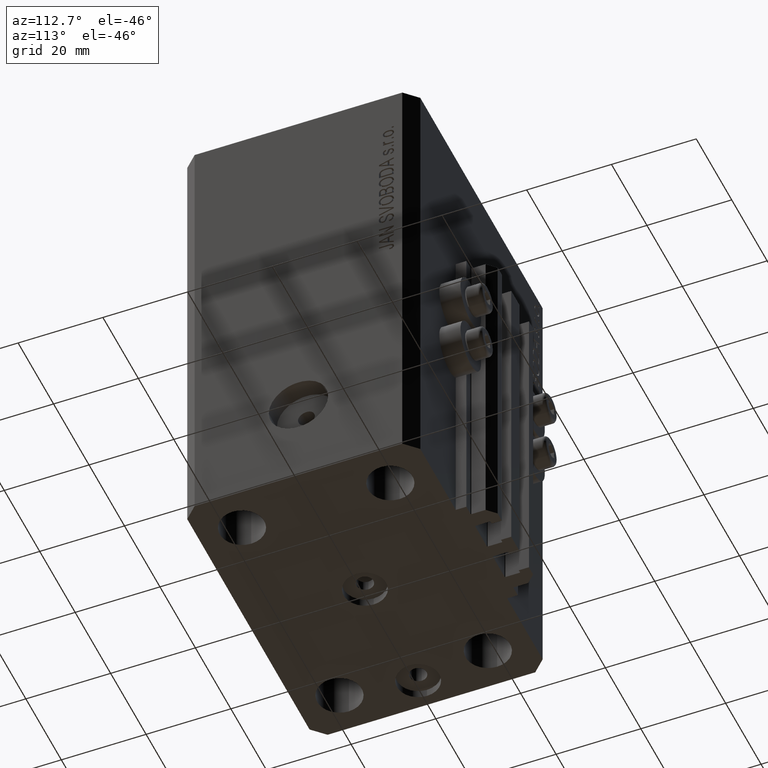
[diagram: clean part render]
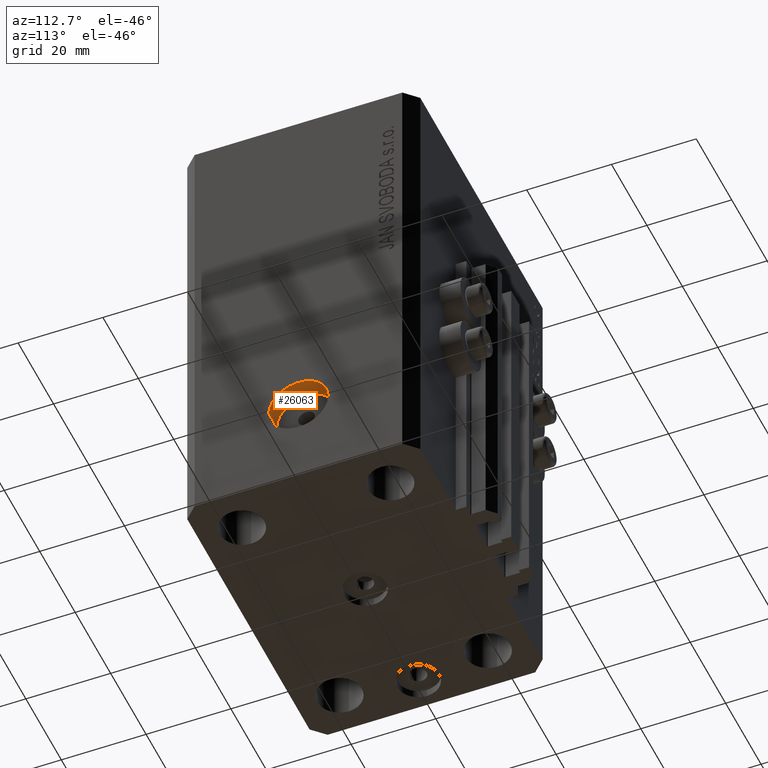
[diagram: same view with one face highlighted and labeled with its STEP entity id]
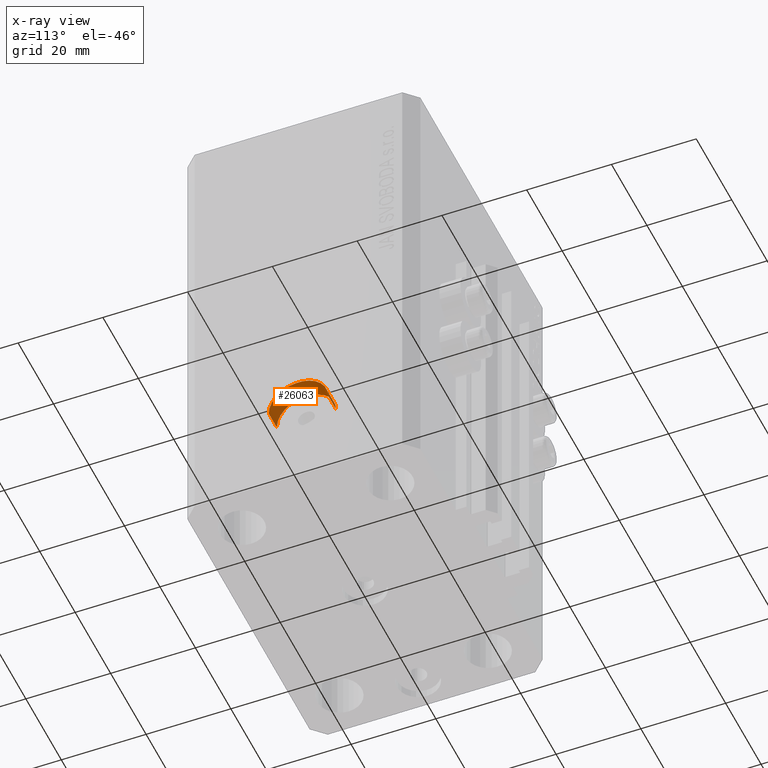
[diagram: x-ray of the same camera — body ghosted, the highlighted face saturated]
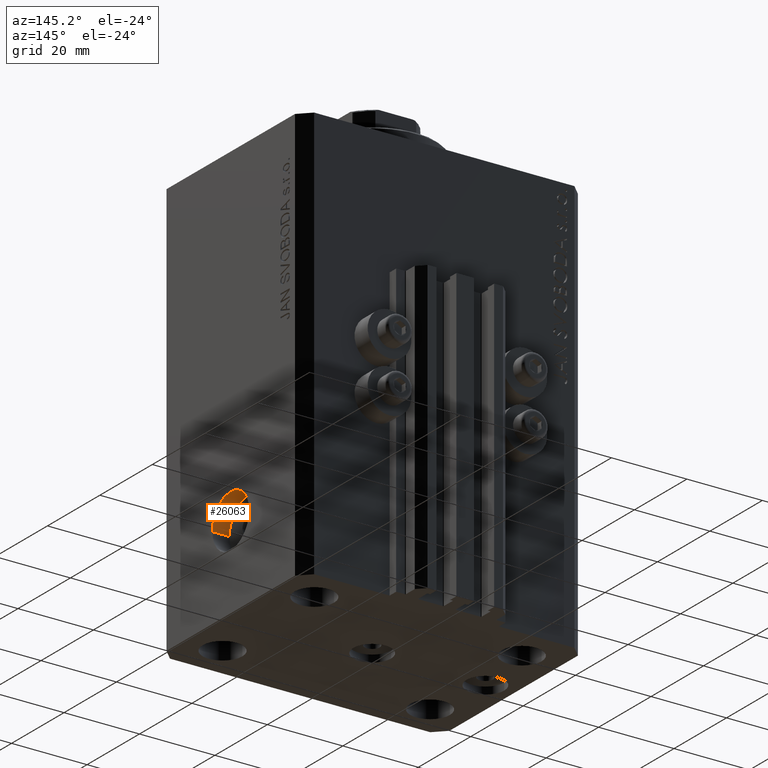
[diagram: same view with one face highlighted and labeled with its STEP entity id]
A machine part, auxiliary view. The second image highlights one B-rep face of the part: STEP entity #26063.
The next image is the same camera in x-ray: the body ghosted, the highlighted face saturated — about 0% of this face is hidden behind the body in this view.
A second angle (auxiliary view) of the same face is appended — the face is thin or edge-on in the first view.
In plain terms, the highlighted cylindrical surface (edge-blend (fillet) strip) has radius 7 mm, axis along (1, -0, 0).
Its self-contained STEP definition (entity closure, byte-faithful):
#620 = LINE ( 'NONE', #25796, #17739 ) ;
#4200 = EDGE_CURVE ( 'NONE', #18357, #11458, #620, .T. ) ;
#4489 = CYLINDRICAL_SURFACE ( 'NONE', #31865, 7.000000000000000000 ) ;
#5655 = AXIS2_PLACEMENT_3D ( 'NONE', #32823, #13535, #9939 ) ;
#8162 = EDGE_CURVE ( 'NONE', #27581, #18357, #17901, .T. ) ;
#8695 = DIRECTION ( 'NONE',  ( 1.288651725011342390E-14, 1.000000000000000000, 0.000000000000000000 ) ) ;
#9895 = ORIENTED_EDGE ( 'NONE', *, *, #4200, .F. ) ;
#9939 = DIRECTION ( 'NONE',  ( 1.288651725011342390E-14, 1.000000000000000000, 0.000000000000000000 ) ) ;
#10099 = CARTESIAN_POINT ( 'NONE',  ( 33.00000000000025580, 7.279302749271430700E-14, -88.00000000000000000 ) ) ;
#10560 = DIRECTION ( 'NONE',  ( 1.288651725011342390E-14, 1.000000000000000000, 0.000000000000000000 ) ) ;
#10673 = ORIENTED_EDGE ( 'NONE', *, *, #8162, .F. ) ;
#11458 = VERTEX_POINT ( 'NONE', #23477 ) ;
#12151 = CARTESIAN_POINT ( 'NONE',  ( 33.00000000000034817, 7.000000000000072831, -88.00000000000000000 ) ) ;
#12520 = CARTESIAN_POINT ( 'NONE',  ( 37.50000000000025580, 1.274490717043860466E-14, -88.00000000000000000 ) ) ;
#13535 = DIRECTION ( 'NONE',  ( 1.000000000000000000, -1.334402673828349134E-14, 0.000000000000000000 ) ) ;
#17739 = VECTOR ( 'NONE', #40365, 1000.000000000000000 ) ;
#17901 = CIRCLE ( 'NONE', #5655, 7.000000000000000000 ) ;
#18357 = VERTEX_POINT ( 'NONE', #46744 ) ;
#21822 = DIRECTION ( 'NONE',  ( 1.000000000000000000, -1.334402673828348976E-14, -0.000000000000000000 ) ) ;
#21943 = VECTOR ( 'NONE', #37750, 1000.000000000000000 ) ;
#22986 = CARTESIAN_POINT ( 'NONE',  ( 37.50000000000034817, 7.000000000000013323, -88.00000000000000000 ) ) ;
#23477 = CARTESIAN_POINT ( 'NONE',  ( 37.50000000000016342, -6.999999999999987566, -88.00000000000000000 ) ) ;
#25138 = AXIS2_PLACEMENT_3D ( 'NONE', #12520, #34055, #8695 ) ;
#25796 = CARTESIAN_POINT ( 'NONE',  ( 33.00000000000017053, -6.999999999999927169, -88.00000000000000000 ) ) ;
#26063 = ADVANCED_FACE ( 'NONE', ( #45994 ), #4489, .F. ) ;
#26635 = CIRCLE ( 'NONE', #25138, 7.000000000000000000 ) ;
#27581 = VERTEX_POINT ( 'NONE', #45561 ) ;
#29398 = EDGE_CURVE ( 'NONE', #27581, #38910, #33926, .T. ) ;
#31865 = AXIS2_PLACEMENT_3D ( 'NONE', #10099, #21822, #10560 ) ;
#32823 = CARTESIAN_POINT ( 'NONE',  ( 33.00000000000025580, 7.279302749271430700E-14, -88.00000000000000000 ) ) ;
#33097 = ORIENTED_EDGE ( 'NONE', *, *, #29398, .T. ) ;
#33926 = LINE ( 'NONE', #12151, #21943 ) ;
#34055 = DIRECTION ( 'NONE',  ( 1.000000000000000000, -1.334402673828349134E-14, 0.000000000000000000 ) ) ;
#34364 = EDGE_CURVE ( 'NONE', #38910, #11458, #26635, .T. ) ;
#35205 = EDGE_LOOP ( 'NONE', ( #9895, #10673, #33097, #38235 ) ) ;
#37750 = DIRECTION ( 'NONE',  ( 1.000000000000000000, -1.334402673828348976E-14, -0.000000000000000000 ) ) ;
#38235 = ORIENTED_EDGE ( 'NONE', *, *, #34364, .T. ) ;
#38910 = VERTEX_POINT ( 'NONE', #22986 ) ;
#40365 = DIRECTION ( 'NONE',  ( 1.000000000000000000, -1.334402673828348976E-14, -0.000000000000000000 ) ) ;
#45561 = CARTESIAN_POINT ( 'NONE',  ( 33.00000000000034817, 7.000000000000072831, -88.00000000000000000 ) ) ;
#45994 = FACE_OUTER_BOUND ( 'NONE', #35205, .T. ) ;
#46744 = CARTESIAN_POINT ( 'NONE',  ( 33.00000000000017053, -6.999999999999927169, -88.00000000000000000 ) ) ;